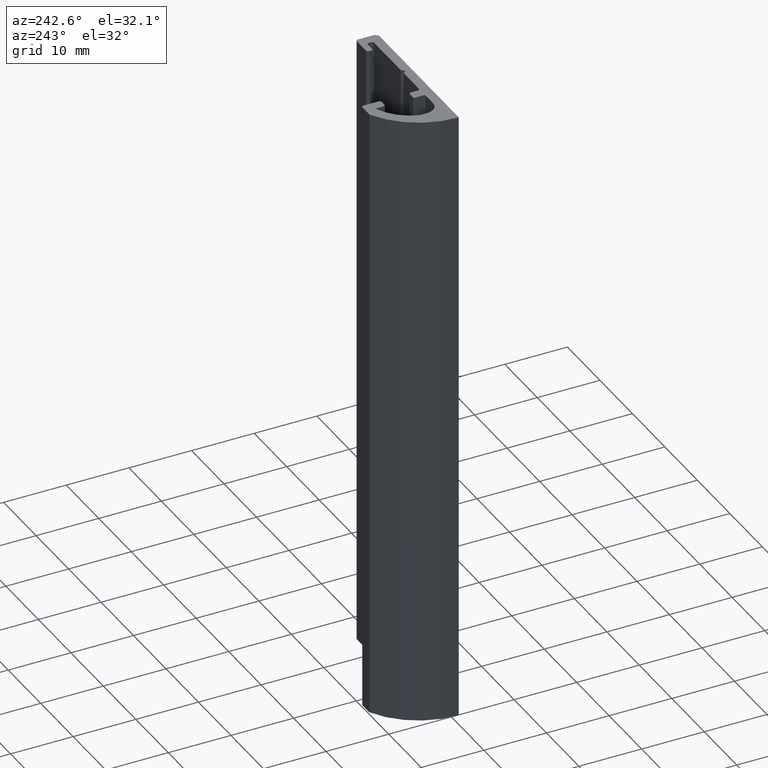
[diagram: clean part render]
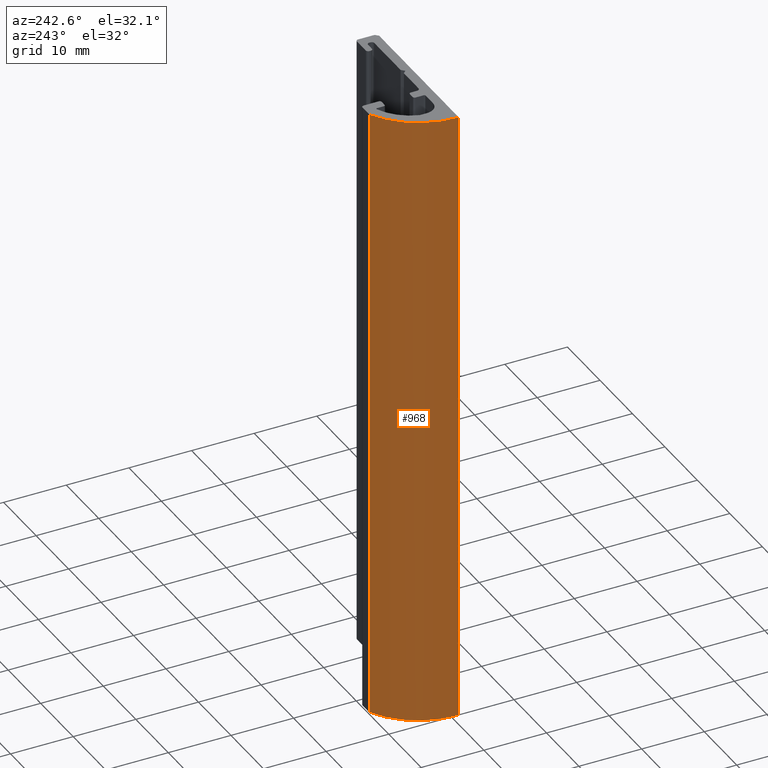
[diagram: same view with one face highlighted and labeled with its STEP entity id]
A machine part, auxiliary view. The second image highlights one B-rep face of the part: STEP entity #968.
In plain terms, the highlighted cylindrical surface (partial cylindrical patch) has radius 11.9979 mm, axis along (0, 0, 1).
Its self-contained STEP definition (entity closure, byte-faithful):
#910=CARTESIAN_POINT('',(-5.762787267910426,10.899999998901933,0.0));
#911=VERTEX_POINT('',#910);
#918=CARTESIAN_POINT('',(-5.762787267910426,10.899999998901933,100.0));
#919=VERTEX_POINT('',#918);
#920=CARTESIAN_POINT('',(-5.762787267910426,10.899999998901933,0.0));
#921=DIRECTION('',(0.0,0.0,1.0));
#922=VECTOR('',#921,100.0);
#923=LINE('',#920,#922);
#924=EDGE_CURVE('',#911,#919,#923,.T.);
#936=CARTESIAN_POINT('',(-0.264388316395639,0.236160832097198,0.0));
#937=DIRECTION('',(0.0,0.0,1.0));
#938=DIRECTION('',(-0.458279709881260,0.888808026241409,0.0));
#939=AXIS2_PLACEMENT_3D('',#936,#937,#938);
#940=CYLINDRICAL_SURFACE('',#939,11.997910518315162);
#941=CARTESIAN_POINT('',(-12.259974374062153,0.0,0.0));
#942=VERTEX_POINT('',#941);
#943=CARTESIAN_POINT('',(-0.264388316395639,0.236160832097198,0.0));
#944=DIRECTION('',(0.0,0.0,1.000000000000000));
#945=DIRECTION('',(-0.458279709881260,0.888808026241409,0.0));
#946=AXIS2_PLACEMENT_3D('',#943,#944,#945);
#947=CIRCLE('',#946,11.997910518315162);
#948=EDGE_CURVE('',#911,#942,#947,.T.);
#949=ORIENTED_EDGE('',*,*,#948,.T.);
#950=CARTESIAN_POINT('',(-12.259974374062153,0.0,100.0));
#951=VERTEX_POINT('',#950);
#952=CARTESIAN_POINT('',(-12.259974374062153,0.0,0.0));
#953=DIRECTION('',(0.0,0.0,1.0));
#954=VECTOR('',#953,100.0);
#955=LINE('',#952,#954);
#956=EDGE_CURVE('',#942,#951,#955,.T.);
#957=ORIENTED_EDGE('',*,*,#956,.T.);
#958=CARTESIAN_POINT('',(-0.264388316395639,0.236160832097198,100.000000000000060));
#959=DIRECTION('',(0.0,0.0,1.000000000000000));
#960=DIRECTION('',(-0.458279709881260,0.888808026241409,0.0));
#961=AXIS2_PLACEMENT_3D('',#958,#959,#960);
#962=CIRCLE('',#961,11.997910518315162);
#963=EDGE_CURVE('',#919,#951,#962,.T.);
#964=ORIENTED_EDGE('',*,*,#963,.F.);
#965=ORIENTED_EDGE('',*,*,#924,.F.);
#966=EDGE_LOOP('',(#949,#957,#964,#965));
#967=FACE_OUTER_BOUND('',#966,.T.);
#968=ADVANCED_FACE('',(#967),#940,.T.);